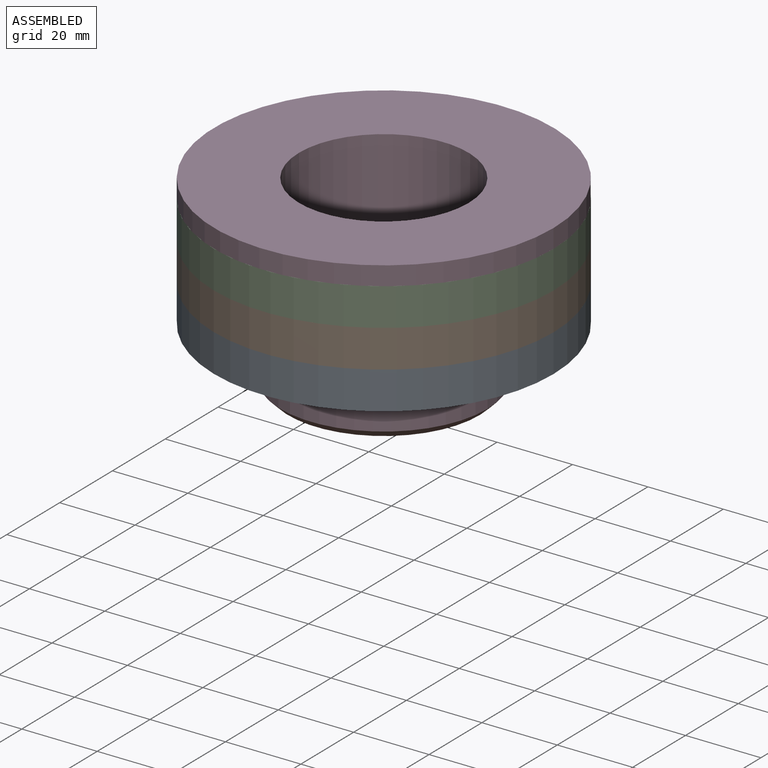
[diagram: assembled view]
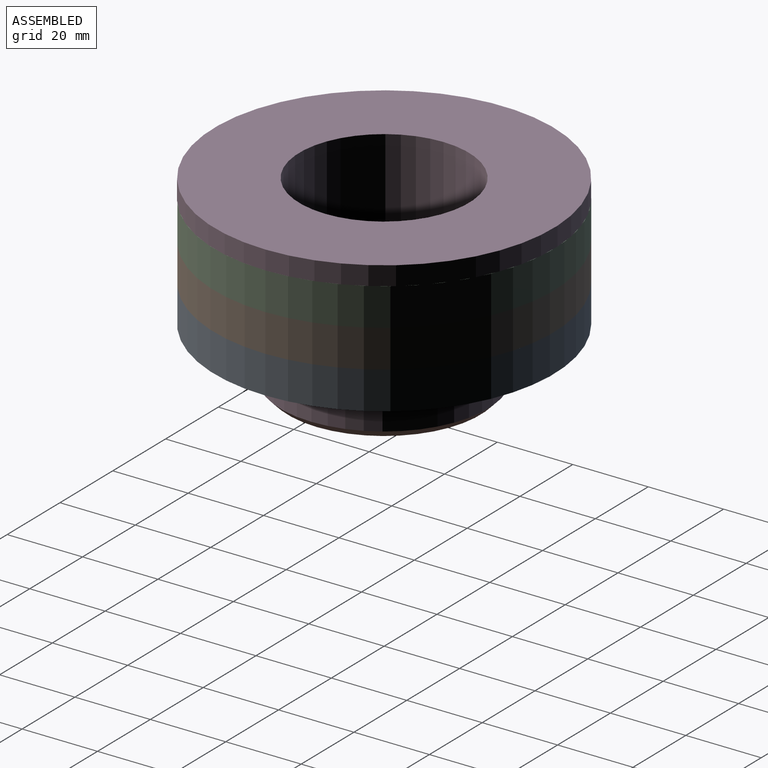
[diagram: assembled view, second angle]
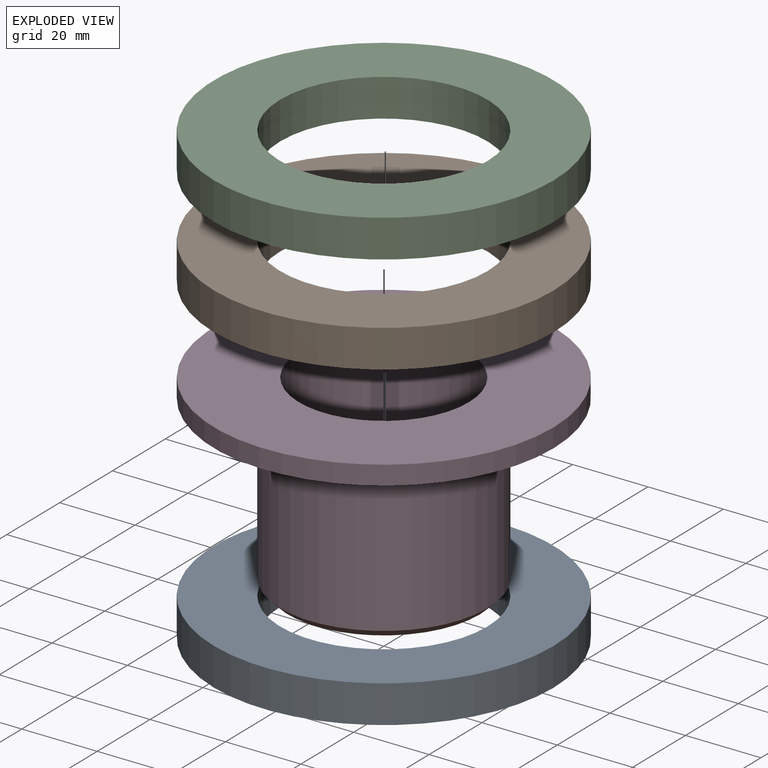
[diagram: exploded view]
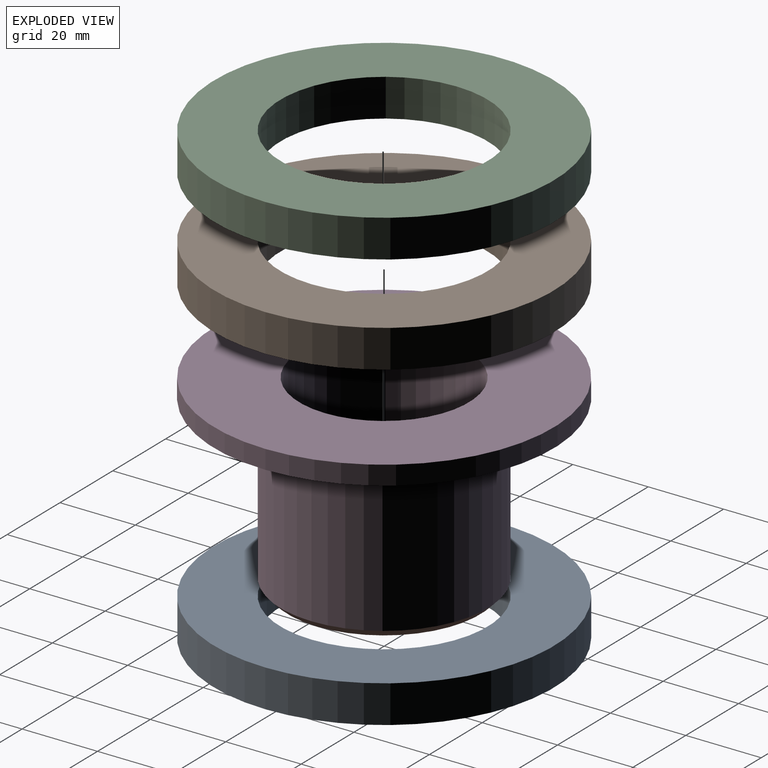
[diagram: exploded view, second angle]
ASSEMBLY  parts=4 mates=3
PART A: 4 faces, bbox 90x90x10 mm
  f0: cylinder r=27.5mm len=55mm, axis (0,0,-1), area 1727.9mm2, adj f2,f3
  f1: cylinder r=45mm len=90mm, axis (0,0,-1), area 2827.4mm2, adj f2,f3
  f2: plane 90x90mm, normal (0,0,1), area 3985.9mm2, adj f0,f1
  f3: plane 90x90mm, normal (0,0,-1), area 3985.9mm2, adj f0,f1
PART B: same geometry as A
PART C: same geometry as A
PART D: 7 faces, bbox 90x90x50 mm
  f0: cylinder r=22.5mm len=50mm, axis (0,0,-1), area 7068.6mm2, adj f2,f5
  f1: cylinder r=45mm len=90mm, axis (0,0,-1), area 1413.7mm2, adj f2,f3
  f2: plane 90x90mm, normal (0,0,1), area 4771.3mm2, adj f0,f1
  f3: plane 90x90mm, normal (0,0,-1), area 3985.9mm2, adj f1,f4
  f4: cylinder r=27.5mm len=55mm, axis (0,0,1), area 7429.9mm2, adj f3,f6
  f5: plane 51x51mm, normal (0,0,-1), area 452.4mm2, adj f0,f6
  f6: cone r=25.5mm half-angle=45deg, axis (0,0,1), area 470.9mm2, adj f4,f5
PLACE A t=(0,0,-20)mm
PLACE B t=(0,0,-10)mm
PLACE C at identity
PLACE D t=(0,0,10)mm
MATE fastened D.f1 <-> C.f1  axis (0,0,-1) through (0,0,10)mm
MATE fastened B.f1 <-> C.f1  axis (0,0,1) through (0,0,0)mm
MATE fastened A.f1 <-> B.f1  axis (0,0,1) through (0,0,-10)mm
